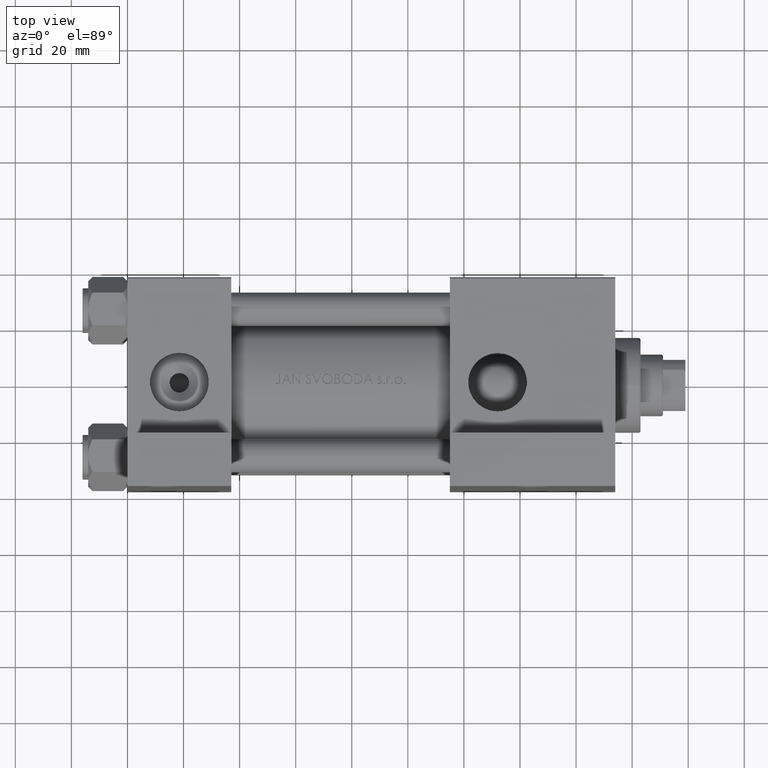
[diagram: clean part render]
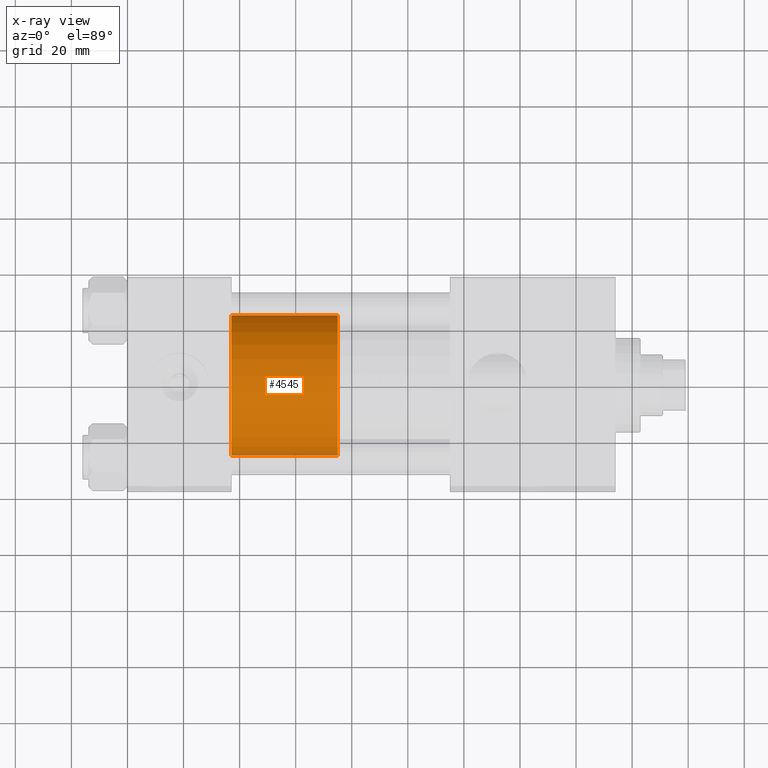
[diagram: x-ray — body ghosted, one internal face saturated and labeled with its STEP entity id]
A machine part, top view, then the same camera in x-ray: the body is ghosted and one INTERNAL B-rep face — a face not visible from any outside direction — is saturated and labeled: STEP entity #4545.
In plain terms, the highlighted cylindrical surface (partial cylindrical patch) has radius 25 mm, axis along (-1, 0, 0).
Its self-contained STEP definition (entity closure, byte-faithful):
#1509 = CARTESIAN_POINT ( 'NONE',  ( 25.00000000000000000, 3.061616997868383043E-15, 0.000000000000000000 ) ) ;
#3618 = ORIENTED_EDGE ( 'NONE', *, *, #21627, .F. ) ;
#4545 = ADVANCED_FACE ( 'NONE', ( #14580 ), #29530, .T. ) ;
#6653 = EDGE_CURVE ( 'NONE', #19366, #45169, #7941, .T. ) ;
#6898 = CARTESIAN_POINT ( 'NONE',  ( 0.000000000000000000, 0.000000000000000000, 38.00000000000000000 ) ) ;
#7462 = CARTESIAN_POINT ( 'NONE',  ( 0.000000000000000000, 0.000000000000000000, 38.00000000000000000 ) ) ;
#7564 = AXIS2_PLACEMENT_3D ( 'NONE', #6898, #25050, #40526 ) ;
#7941 = LINE ( 'NONE', #37821, #17940 ) ;
#8416 = EDGE_CURVE ( 'NONE', #25112, #26804, #25183, .T. ) ;
#10936 = DIRECTION ( 'NONE',  ( 0.000000000000000000, 0.000000000000000000, 1.000000000000000000 ) ) ;
#11085 = ORIENTED_EDGE ( 'NONE', *, *, #15219, .T. ) ;
#14580 = FACE_OUTER_BOUND ( 'NONE', #48346, .T. ) ;
#15219 = EDGE_CURVE ( 'NONE', #45169, #26804, #45171, .T. ) ;
#17940 = VECTOR ( 'NONE', #38317, 1000.000000000000000 ) ;
#18138 = DIRECTION ( 'NONE',  ( 1.000000000000000000, 0.000000000000000000, 0.000000000000000000 ) ) ;
#19366 = VERTEX_POINT ( 'NONE', #38656 ) ;
#21627 = EDGE_CURVE ( 'NONE', #19366, #25112, #32669, .T. ) ;
#25050 = DIRECTION ( 'NONE',  ( -0.000000000000000000, -0.000000000000000000, -1.000000000000000000 ) ) ;
#25112 = VERTEX_POINT ( 'NONE', #44468 ) ;
#25183 = LINE ( 'NONE', #40667, #37113 ) ;
#26804 = VERTEX_POINT ( 'NONE', #1509 ) ;
#28317 = DIRECTION ( 'NONE',  ( 1.000000000000000000, 0.000000000000000000, 0.000000000000000000 ) ) ;
#29530 = CYLINDRICAL_SURFACE ( 'NONE', #7564, 25.00000000000000000 ) ;
#30032 = AXIS2_PLACEMENT_3D ( 'NONE', #34827, #31831, #28317 ) ;
#31831 = DIRECTION ( 'NONE',  ( 0.000000000000000000, 0.000000000000000000, 1.000000000000000000 ) ) ;
#32010 = ORIENTED_EDGE ( 'NONE', *, *, #8416, .F. ) ;
#32669 = CIRCLE ( 'NONE', #42214, 25.00000000000000000 ) ;
#34827 = CARTESIAN_POINT ( 'NONE',  ( 0.000000000000000000, 0.000000000000000000, 0.000000000000000000 ) ) ;
#36416 = DIRECTION ( 'NONE',  ( -0.000000000000000000, -0.000000000000000000, -1.000000000000000000 ) ) ;
#37113 = VECTOR ( 'NONE', #36416, 1000.000000000000000 ) ;
#37378 = ORIENTED_EDGE ( 'NONE', *, *, #6653, .T. ) ;
#37821 = CARTESIAN_POINT ( 'NONE',  ( -25.00000000000000000, 0.000000000000000000, 38.00000000000000000 ) ) ;
#38317 = DIRECTION ( 'NONE',  ( -0.000000000000000000, -0.000000000000000000, -1.000000000000000000 ) ) ;
#38656 = CARTESIAN_POINT ( 'NONE',  ( -25.00000000000000000, 0.000000000000000000, 38.00000000000000000 ) ) ;
#40526 = DIRECTION ( 'NONE',  ( -1.000000000000000000, 0.000000000000000000, 0.000000000000000000 ) ) ;
#40667 = CARTESIAN_POINT ( 'NONE',  ( 25.00000000000000000, 3.061616997868383043E-15, 38.00000000000000000 ) ) ;
#40681 = CARTESIAN_POINT ( 'NONE',  ( -25.00000000000000000, 0.000000000000000000, 0.000000000000000000 ) ) ;
#42214 = AXIS2_PLACEMENT_3D ( 'NONE', #7462, #10936, #18138 ) ;
#44468 = CARTESIAN_POINT ( 'NONE',  ( 25.00000000000000000, 3.061616997868383043E-15, 38.00000000000000000 ) ) ;
#45169 = VERTEX_POINT ( 'NONE', #40681 ) ;
#45171 = CIRCLE ( 'NONE', #30032, 25.00000000000000000 ) ;
#48346 = EDGE_LOOP ( 'NONE', ( #32010, #3618, #37378, #11085 ) ) ;